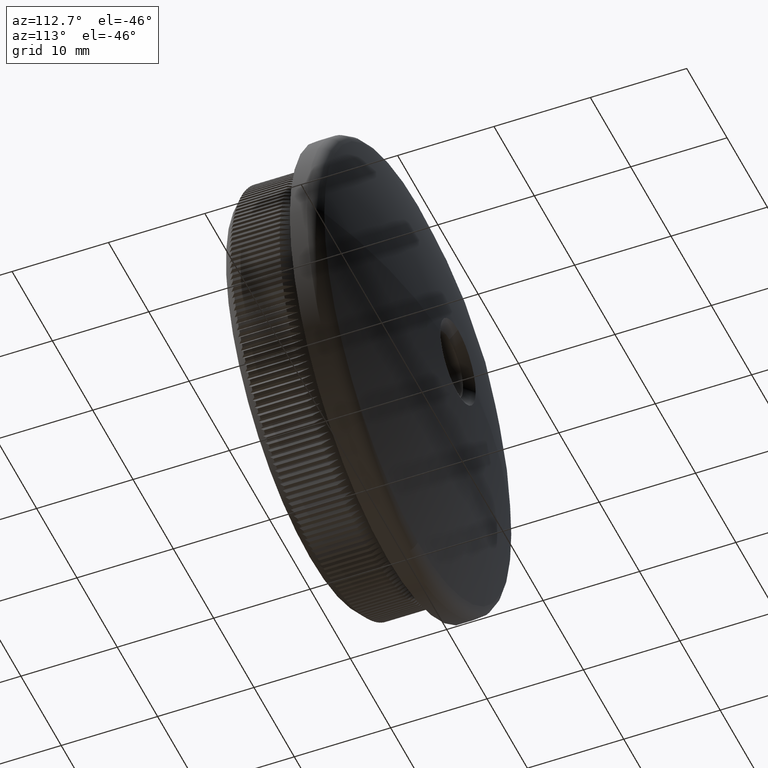
[diagram: clean part render]
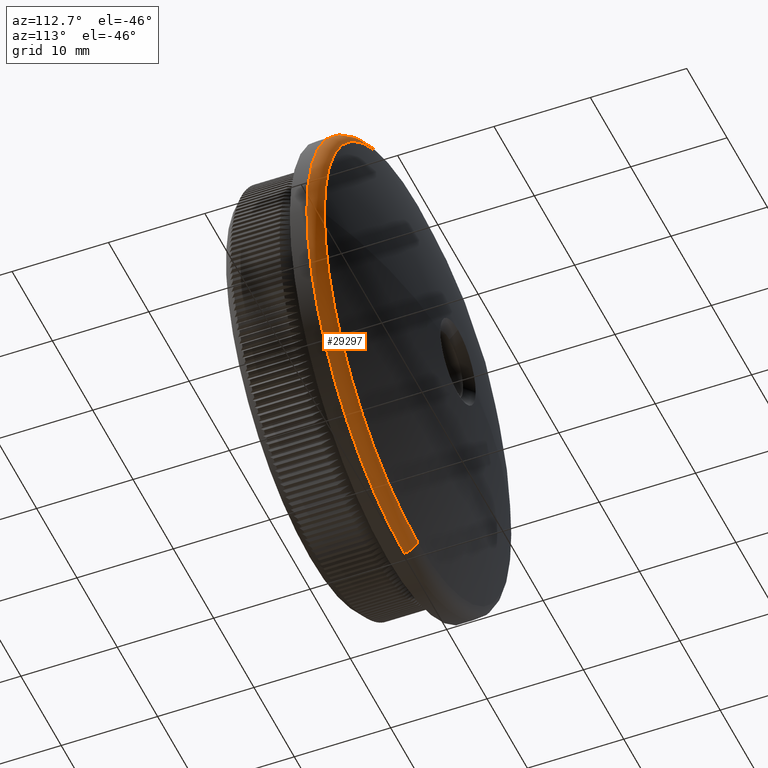
[diagram: same view with one face highlighted and labeled with its STEP entity id]
A machine part, auxiliary view. The second image highlights one B-rep face of the part: STEP entity #29297.
In plain terms, the highlighted toroidal blend (fillet) surface has major radius 22.65 mm and minor (blend) radius 1.5 mm.
Its self-contained STEP definition (entity closure, byte-faithful):
#1979 = CIRCLE ( 'NONE', #30591, 23.19018648117216600 ) ;
#2554 = CARTESIAN_POINT ( 'NONE',  ( 23.19018648117216600, 11.17937736945556400, 0.0000000000000000000 ) ) ;
#2636 = EDGE_CURVE ( 'NONE', #31214, #28695, #18299, .T. ) ;
#2938 = CIRCLE ( 'NONE', #3867, 24.15000000000000200 ) ;
#3347 = EDGE_CURVE ( 'NONE', #9714, #31214, #1979, .T. ) ;
#3725 = VERTEX_POINT ( 'NONE', #18924 ) ;
#3867 = AXIS2_PLACEMENT_3D ( 'NONE', #5932, #26128, #31195 ) ;
#4332 = CARTESIAN_POINT ( 'NONE',  ( 0.0000000000000000000, 11.17937736945556700, 0.0000000000000000000 ) ) ;
#4570 = TOROIDAL_SURFACE ( 'NONE', #13817, 22.64999999999999900, 1.500000000000000000 ) ;
#5082 = CARTESIAN_POINT ( 'NONE',  ( 2.957522019940858300E-015, 9.780020886796899400, 24.15000000000000200 ) ) ;
#5932 = CARTESIAN_POINT ( 'NONE',  ( 0.0000000000000000000, 9.780020886796899400, 0.0000000000000000000 ) ) ;
#7556 = CIRCLE ( 'NONE', #11631, 23.19018648117216600 ) ;
#8834 = CARTESIAN_POINT ( 'NONE',  ( 0.0000000000000000000, 11.17937736945556700, 0.0000000000000000000 ) ) ;
#9714 = VERTEX_POINT ( 'NONE', #2554 ) ;
#10068 = ORIENTED_EDGE ( 'NONE', *, *, #22402, .F. ) ;
#11631 = AXIS2_PLACEMENT_3D ( 'NONE', #8834, #26338, #26764 ) ;
#12019 = DIRECTION ( 'NONE',  ( 0.0000000000000000000, 1.000000000000000000, 0.0000000000000000000 ) ) ;
#13817 = AXIS2_PLACEMENT_3D ( 'NONE', #23603, #16131, #18738 ) ;
#14271 = VERTEX_POINT ( 'NONE', #5082 ) ;
#14699 = DIRECTION ( 'NONE',  ( 0.0000000000000000000, 0.0000000000000000000, -1.000000000000000000 ) ) ;
#14918 = EDGE_LOOP ( 'NONE', ( #15773, #28285, #10068, #31940, #17975 ) ) ;
#15773 = ORIENTED_EDGE ( 'NONE', *, *, #25755, .F. ) ;
#16131 = DIRECTION ( 'NONE',  ( -0.0000000000000000000, -1.000000000000000000, -0.0000000000000000000 ) ) ;
#17975 = ORIENTED_EDGE ( 'NONE', *, *, #3347, .F. ) ;
#18059 = AXIS2_PLACEMENT_3D ( 'NONE', #29868, #32183, #32303 ) ;
#18299 = CIRCLE ( 'NONE', #19579, 1.500000000000001300 ) ;
#18738 = DIRECTION ( 'NONE',  ( 0.0000000000000000000, 0.0000000000000000000, -1.000000000000000000 ) ) ;
#18924 = CARTESIAN_POINT ( 'NONE',  ( 2.898750392260314800E-015, 11.17937736945556700, 23.19018648117216600 ) ) ;
#19579 = AXIS2_PLACEMENT_3D ( 'NONE', #23567, #26100, #20737 ) ;
#20737 = DIRECTION ( 'NONE',  ( 0.0000000000000000000, 0.0000000000000000000, 1.000000000000000000 ) ) ;
#21323 = CIRCLE ( 'NONE', #18059, 1.500000000000001300 ) ;
#22070 = FACE_OUTER_BOUND ( 'NONE', #14918, .T. ) ;
#22196 = CARTESIAN_POINT ( 'NONE',  ( 0.0000000000000000000, 11.17937736945556700, -23.19018648117216600 ) ) ;
#22402 = EDGE_CURVE ( 'NONE', #28695, #14271, #2938, .T. ) ;
#23567 = CARTESIAN_POINT ( 'NONE',  ( 0.0000000000000000000, 9.780020886796899400, -22.64999999999999900 ) ) ;
#23603 = CARTESIAN_POINT ( 'NONE',  ( 0.0000000000000000000, 9.780020886796899400, 0.0000000000000000000 ) ) ;
#25755 = EDGE_CURVE ( 'NONE', #3725, #9714, #7556, .T. ) ;
#26100 = DIRECTION ( 'NONE',  ( -1.000000000000000000, 0.0000000000000000000, 0.0000000000000000000 ) ) ;
#26128 = DIRECTION ( 'NONE',  ( -0.0000000000000000000, -1.000000000000000000, -0.0000000000000000000 ) ) ;
#26338 = DIRECTION ( 'NONE',  ( 0.0000000000000000000, 1.000000000000000000, 0.0000000000000000000 ) ) ;
#26764 = DIRECTION ( 'NONE',  ( 0.0000000000000000000, 0.0000000000000000000, -1.000000000000000000 ) ) ;
#28285 = ORIENTED_EDGE ( 'NONE', *, *, #28651, .T. ) ;
#28651 = EDGE_CURVE ( 'NONE', #3725, #14271, #21323, .T. ) ;
#28695 = VERTEX_POINT ( 'NONE', #32408 ) ;
#29297 = ADVANCED_FACE ( 'NONE', ( #22070 ), #4570, .T. ) ;
#29868 = CARTESIAN_POINT ( 'NONE',  ( 2.773825000068754800E-015, 9.780020886796899400, 22.64999999999999900 ) ) ;
#30591 = AXIS2_PLACEMENT_3D ( 'NONE', #4332, #12019, #14699 ) ;
#31195 = DIRECTION ( 'NONE',  ( 0.0000000000000000000, 0.0000000000000000000, -1.000000000000000000 ) ) ;
#31214 = VERTEX_POINT ( 'NONE', #22196 ) ;
#31940 = ORIENTED_EDGE ( 'NONE', *, *, #2636, .F. ) ;
#32183 = DIRECTION ( 'NONE',  ( 1.000000000000000000, 0.0000000000000000000, -1.224646799147353200E-016 ) ) ;
#32303 = DIRECTION ( 'NONE',  ( -1.224646799147352000E-016, 0.0000000000000000000, -1.000000000000000000 ) ) ;
#32408 = CARTESIAN_POINT ( 'NONE',  ( 0.0000000000000000000, 9.780020886796899400, -24.15000000000000200 ) ) ;